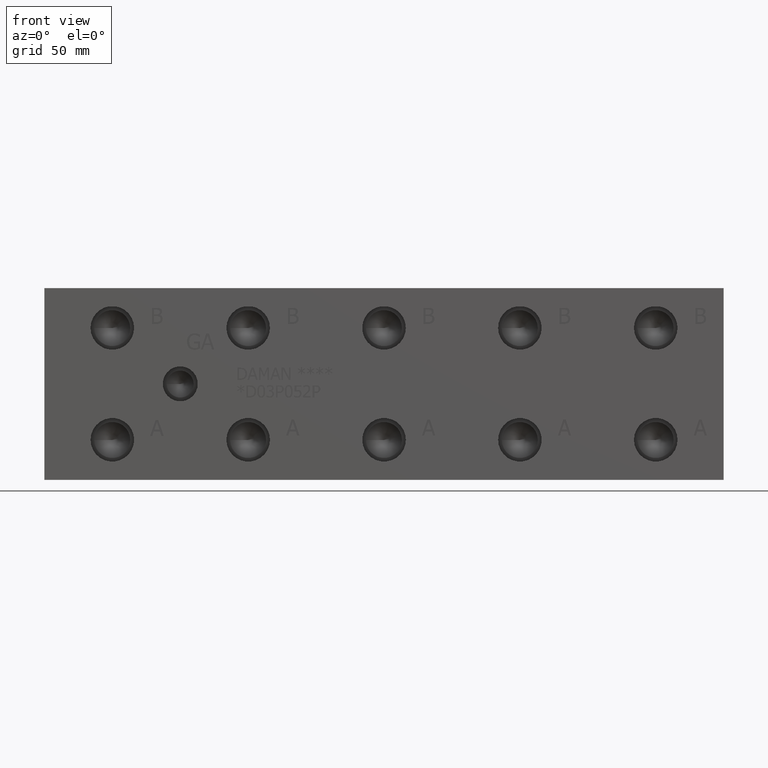
[diagram: clean part render]
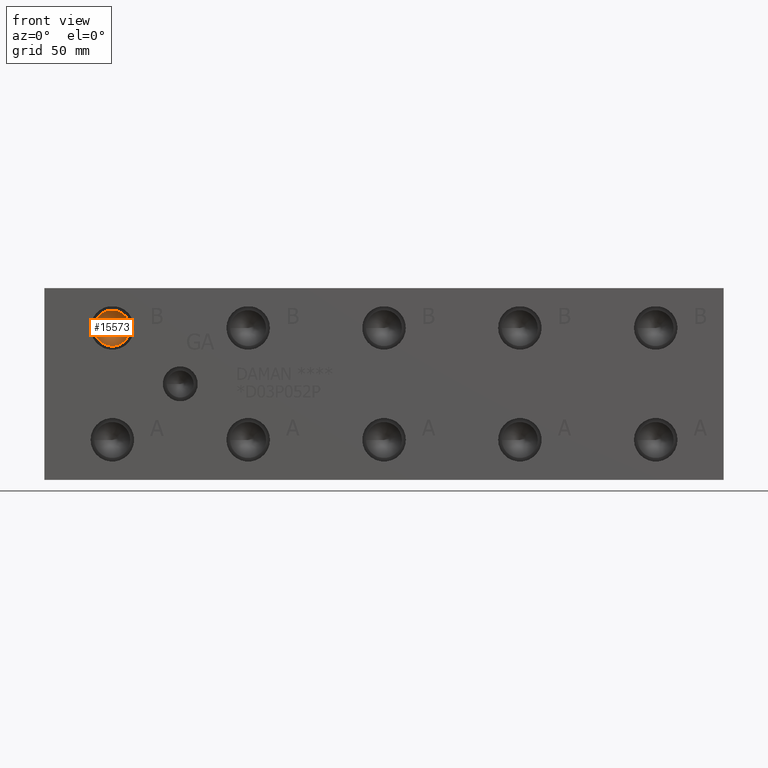
[diagram: same view with one face highlighted and labeled with its STEP entity id]
A machine part, front view. The second image highlights one B-rep face of the part: STEP entity #15573.
In plain terms, the highlighted conical surface has half-angle 60 deg.
Its self-contained STEP definition (entity closure, byte-faithful):
#130=CONICAL_SURFACE('',#16301,3.57505,1.0471975511966);
#284=CIRCLE('',#16302,7.1501);
#285=CIRCLE('',#16303,7.1501);
#1811=FACE_OUTER_BOUND('',#2713,.T.);
#2713=EDGE_LOOP('',(#13310,#13311,#13312,#13313));
#4209=LINE('',#26305,#5604);
#5604=VECTOR('',#19110,3.57505);
#7332=VERTEX_POINT('',#26301);
#7333=VERTEX_POINT('',#26302);
#7334=VERTEX_POINT('',#26304);
#9419=EDGE_CURVE('',#7332,#7333,#284,.T.);
#9420=EDGE_CURVE('',#7333,#7334,#4209,.T.);
#9421=EDGE_CURVE('',#7333,#7332,#285,.T.);
#13310=ORIENTED_EDGE('',*,*,#9419,.T.);
#13311=ORIENTED_EDGE('',*,*,#9420,.T.);
#13312=ORIENTED_EDGE('',*,*,#9420,.F.);
#13313=ORIENTED_EDGE('',*,*,#9421,.T.);
#15573=ADVANCED_FACE('',(#1811),#130,.F.);
#16301=AXIS2_PLACEMENT_3D('',#26300,#19106,#19107);
#16302=AXIS2_PLACEMENT_3D('',#26303,#19108,#19109);
#16303=AXIS2_PLACEMENT_3D('',#26306,#19111,#19112);
#19106=DIRECTION('center_axis',(0.,-1.,0.));
#19107=DIRECTION('ref_axis',(1.,0.,0.));
#19108=DIRECTION('center_axis',(0.,-1.,0.));
#19109=DIRECTION('ref_axis',(1.,0.,0.));
#19110=DIRECTION('',(0.866025403784439,0.5,1.06057523872491E-16));
#19111=DIRECTION('center_axis',(0.,-1.,0.));
#19112=DIRECTION('ref_axis',(1.,0.,0.));
#26300=CARTESIAN_POINT('Origin',(26.9748,14.2116660798664,60.325));
#26301=CARTESIAN_POINT('',(34.1249,12.14761,60.325));
#26302=CARTESIAN_POINT('',(19.8247,12.14761,60.325));
#26303=CARTESIAN_POINT('Origin',(26.9748,12.14761,60.325));
#26304=CARTESIAN_POINT('',(26.9748,16.2757221597327,60.325));
#26305=CARTESIAN_POINT('',(23.39975,14.2116660798664,60.325));
#26306=CARTESIAN_POINT('Origin',(26.9748,12.14761,60.325));